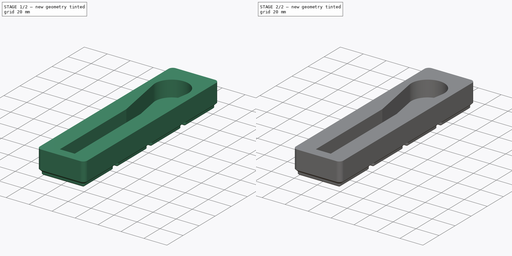
[diagram: build sequence overview — one tinted view per stage of 2, left to right]
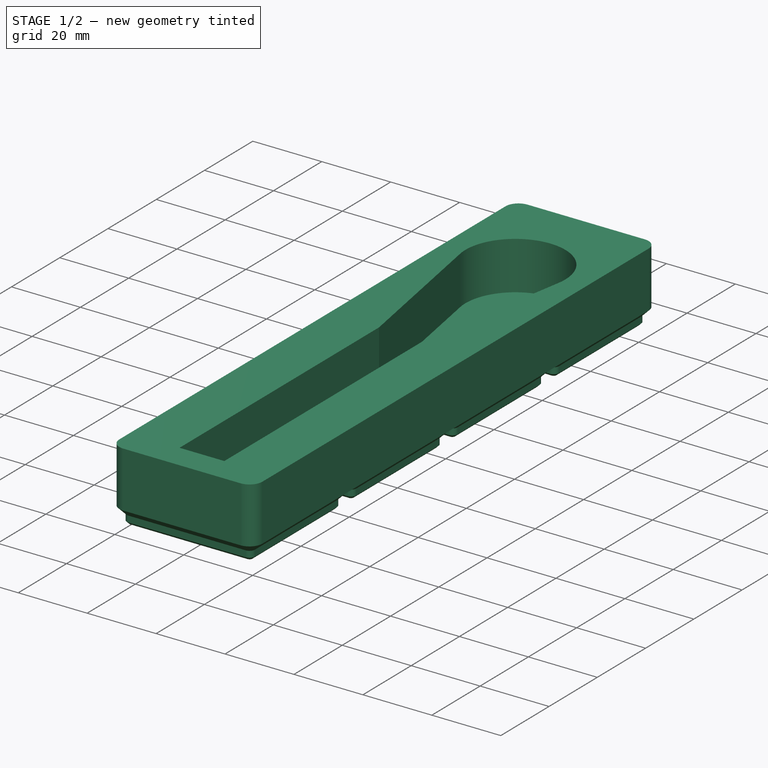
[diagram: stage 1 of 2 — iso view after this stage's code; geometry added in this stage tinted green]
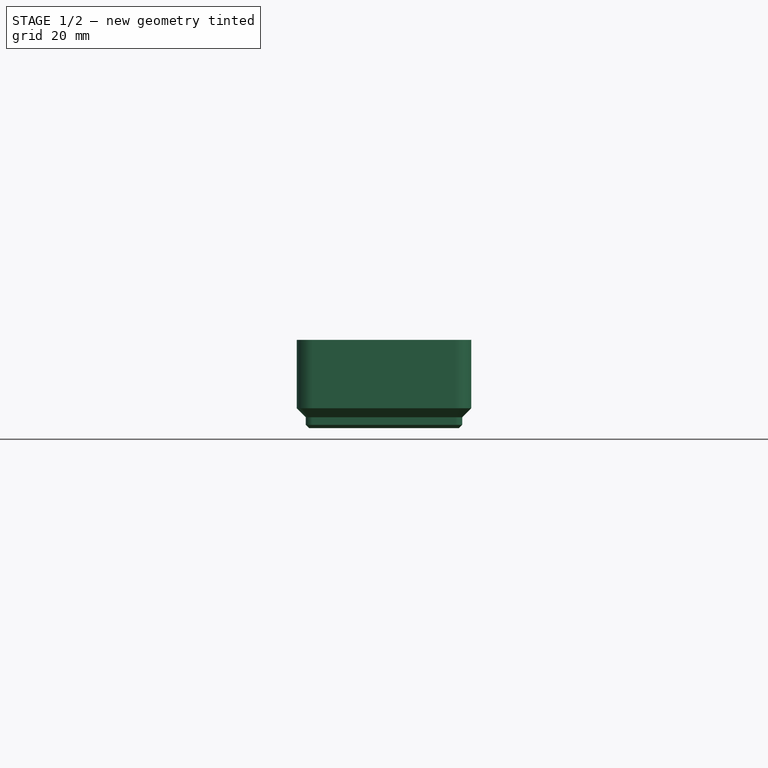
[diagram: stage 1 of 2 — front view after this stage's code; geometry added in this stage tinted green]
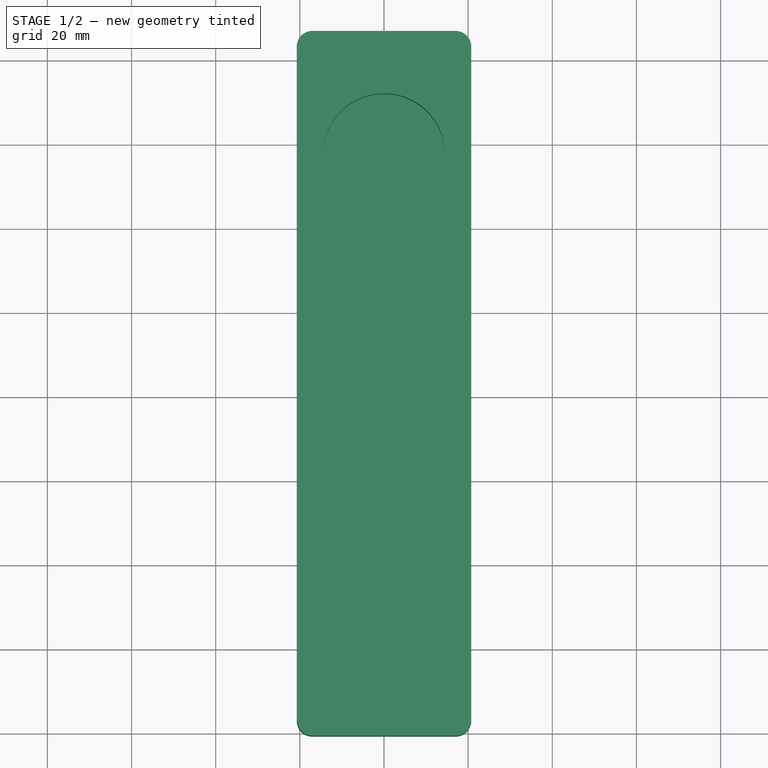
[diagram: stage 1 of 2 — top view after this stage's code; geometry added in this stage tinted green]
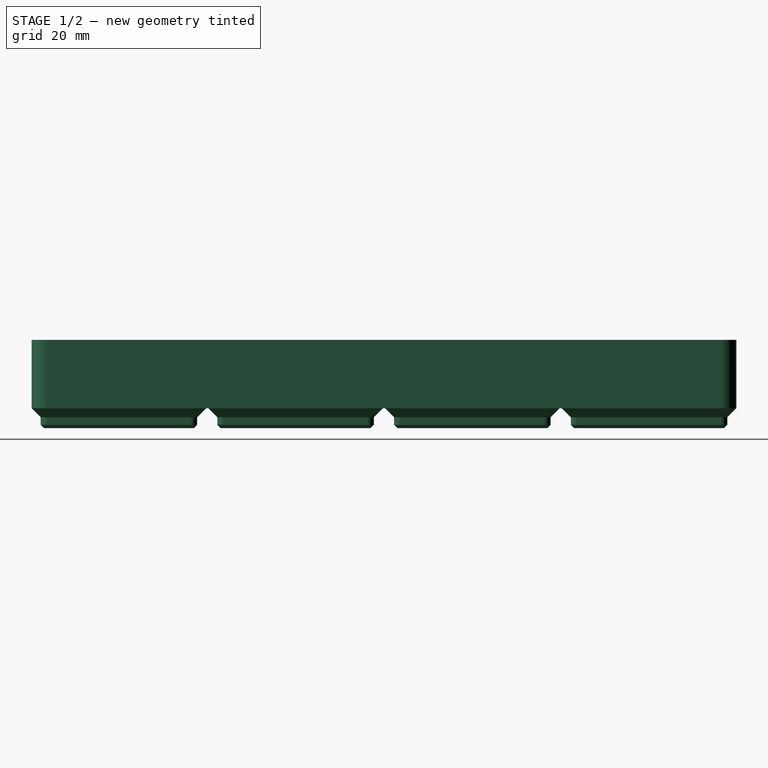
[diagram: stage 1 of 2 — right view after this stage's code; geometry added in this stage tinted green]
FCSTD DOCUMENT  (FreeCAD 0.21R33771 (Git))
Label: quarter_inch_drive
License: All rights reserved
LicenseURL: http://en.wikipedia.org/wiki/All_rights_reserved
objects: Sketcher::SketchObject×2, PartDesign::Pocket×2, PartDesign::FeaturePython×1, PartDesign::Body×1
note: 8 computed .brp shape members not serialized (recipe doc carries the construction recipe); baked Part::Feature solids carry a one-line shape summary decoded from their .brp

FEATURE [PartDesign::FeaturePython] BinBlank  # WARN: FeaturePython — macro-defined, semantics opaque (R4)
  BaseProfileBottomChamfer = 0.8
  BaseProfileHeight = 4.75
  BaseProfileTopChamfer = 2.15
  BaseProfileVerticalSection = 1.8
  BinBottomRadius = 0.8
  BinOuterRadius = 3.75
  BinUnit = 41.5
  BinVerticalRadius = 1.6
  CustomHeight = 42
  GridSize = 42
  HeightUnitValue = 7
  HeightUnits = 3
  MagnetHoleDepth = 2.4
  MagnetHoleDiameter = 6.5
  MagnetHoleDistanceFromEdge = 8
  MagnetHoles = false
  NonStandardHeight = false
  ScrewHoleDepth = 6
  ScrewHoleDiameter = 3
  ScrewHoles = false
  SequentialBridgingLayerHeight = 0.2
  StackingLip = false
  StackingLipBottomChamfer = 0.7
  StackingLipTopChamfer = 1.5
  StackingLipTopLedge = 0.4
  StackingLipVerticalSection = 1.8
  Tolerance = 0.25
  TotalHeight = 21
  WallThickness = 1
  version = 0.5.0
  xGridUnits = 1
  xTotalWidth = 41.5
  yGridUnits = 4
  yTotalWidth = 167.5
FEATURE [Sketcher::SketchObject] Sketch
  FullyConstrained = false
  MapMode = 5
  Support = -> [BinBlank]
  sketch-geometry (7):
    g0: LineSegment StartX=0 StartY=-13.0621 StartZ=0 EndX=0 EndY=131.938 EndZ=0
    g1: LineSegment StartX=6.68024 StartY=-12.6916 StartZ=0 EndX=-6.31976 EndY=-12.6916 EndZ=0
    g2: LineSegment StartX=-6.31976 StartY=-12.6916 StartZ=0 EndX=-6.31976 EndY=69.9582 EndZ=0
    g3: LineSegment StartX=6.68024 StartY=69.9359 StartZ=0 EndX=6.68024 EndY=-12.6916 EndZ=0
    g4: ArcOfCircle CenterX=2.7e-15 CenterY=117.438 CenterZ=0 NormalX=0 NormalY=0 NormalZ=1 AngleXU=0 Radius=14.5 StartAngle=6.09826 EndAngle=9.6097
    g5: LineSegment StartX=-14.2528 StartY=114.772 StartZ=0 EndX=-6.31976 EndY=69.9582 EndZ=0
    g6: LineSegment StartX=14.2528 StartY=114.772 StartZ=0 EndX=6.68024 EndY=69.9359 EndZ=0
  constraints (13):
    c: PointOnObject(g0,g-2)
    c: Coincident(g1,g2)
    c: Coincident(g3,g1)
    c: Horizontal(g1)
    c: Vertical(g2)
    c: Vertical(g3)
    c: Diameter(g4) = 29
    c: Vertical(g0)
    c: PointOnObject(g0,g4)
    c: Coincident(g5,g4)
    c: Coincident(g5,g2)
    c: Coincident(g6,g4)
    c: Coincident(g6,g3)
FEATURE [PartDesign::Pocket] Pocket
  BaseFeature = -> BinBlank
  Direction = (0,0,-1)
  Length = 14
  Length2 = 5
  Profile = -> Sketch
  ReferenceAxis = -> Sketch [N_Axis]
  Type = 0
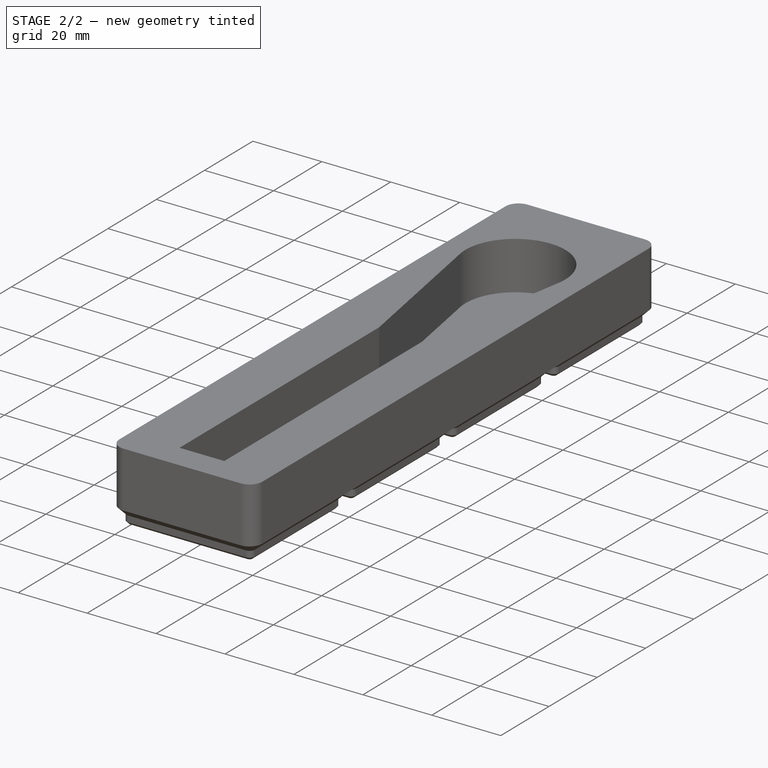
[diagram: stage 2 of 2 — iso view after this stage's code; geometry added in this stage tinted green]
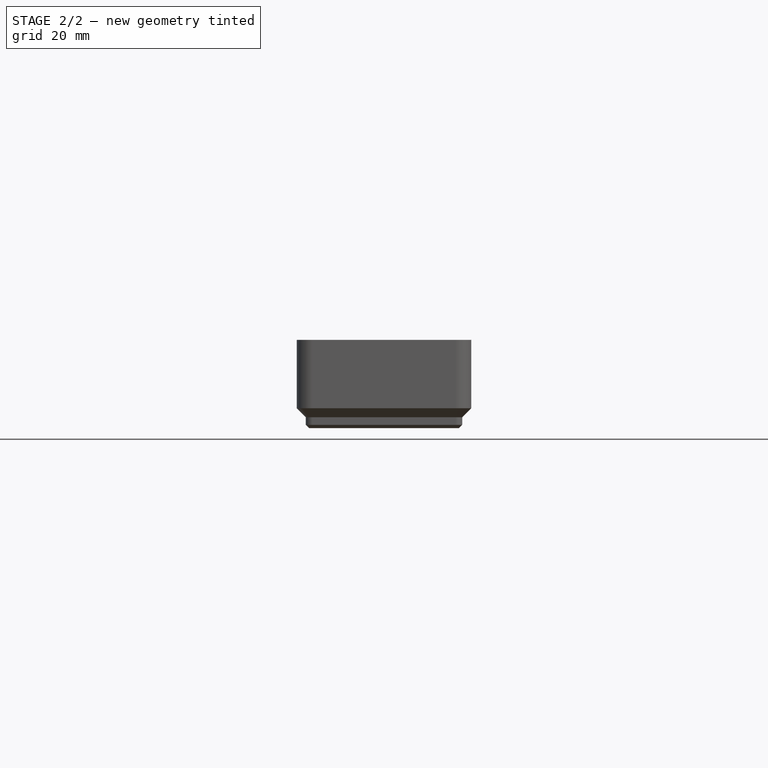
[diagram: stage 2 of 2 — front view after this stage's code; geometry added in this stage tinted green]
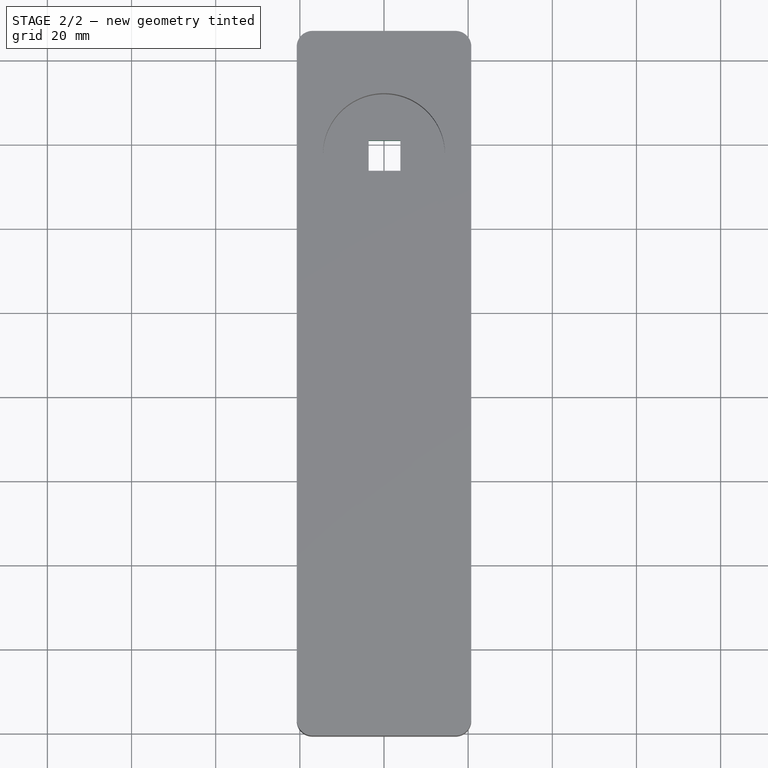
[diagram: stage 2 of 2 — top view after this stage's code; geometry added in this stage tinted green]
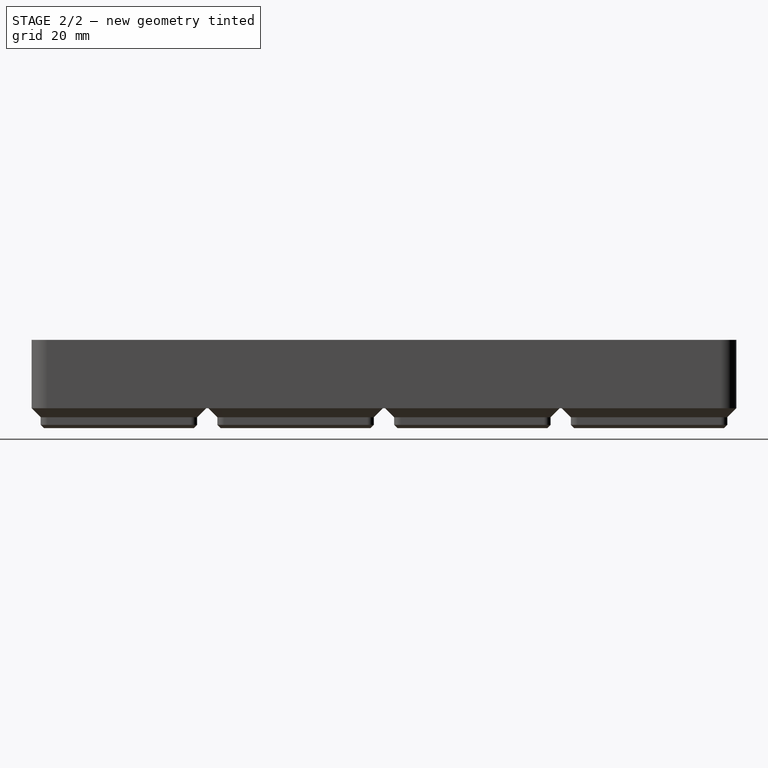
[diagram: stage 2 of 2 — right view after this stage's code; geometry added in this stage tinted green]
FEATURE [Sketcher::SketchObject] Sketch001
  FullyConstrained = false
  MapMode = 5
  Placement = pos=(0,0,-14) rot=(0,0,1;0rad)
  Support = -> [Pocket]
  sketch-geometry (4):
    g0: LineSegment StartX=-3.65362 StartY=120.947 StartZ=0 EndX=3.90132 EndY=120.947 EndZ=0
    g1: LineSegment StartX=3.90132 StartY=120.947 StartZ=0 EndX=3.90132 EndY=113.743 EndZ=0
    g2: LineSegment StartX=3.90132 StartY=113.743 StartZ=0 EndX=-3.65362 EndY=113.743 EndZ=0
    g3: LineSegment StartX=-3.65362 StartY=113.743 StartZ=0 EndX=-3.65362 EndY=120.947 EndZ=0
  constraints (8):
    c: Coincident(g0,g1)
    c: Coincident(g1,g2)
    c: Coincident(g2,g3)
    c: Coincident(g3,g0)
    c: Horizontal(g0)
    c: Horizontal(g2)
    c: Vertical(g1)
    c: Vertical(g3)
FEATURE [PartDesign::Pocket] Pocket001
  BaseFeature = -> Pocket
  Direction = (0,0,-1)
  Length = 5
  Length2 = 5
  Profile = -> Sketch001
  ReferenceAxis = -> Sketch001 [N_Axis]
  Type = 1
FEATURE [PartDesign::Body] Body
  Group = -> [BinBlank,Sketch,Pocket,Sketch001,Pocket001]
  Origin = -> Origin
  Tip = -> Pocket001
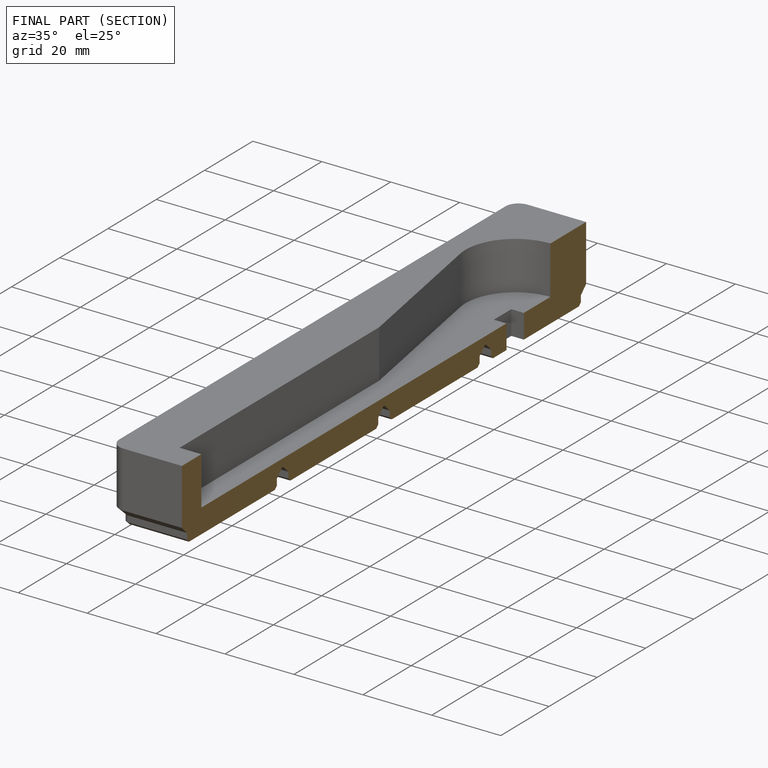
[diagram: finished part — half-section view (interior)]
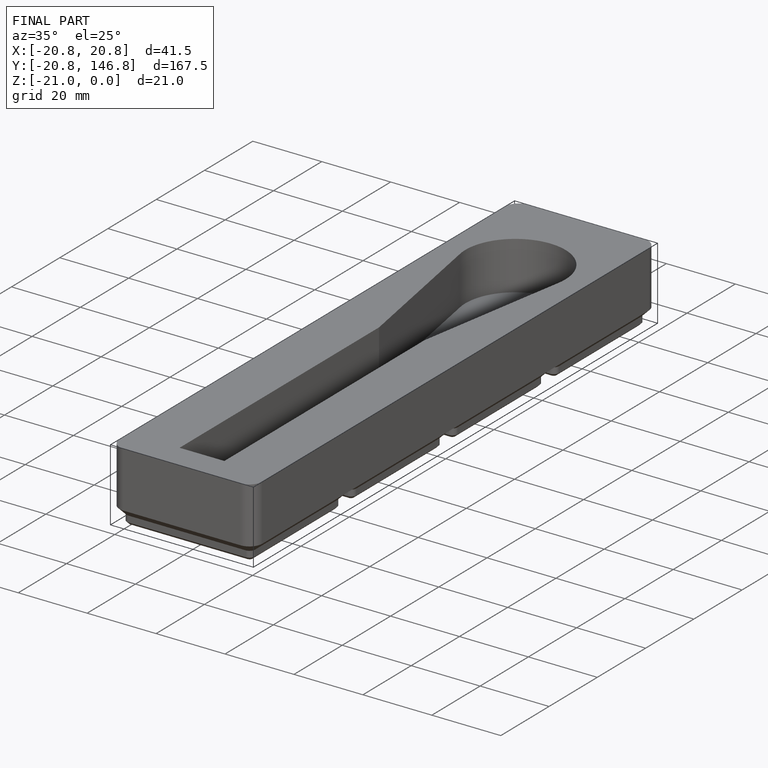
[diagram: finished part — iso view with bounding-box wireframe]
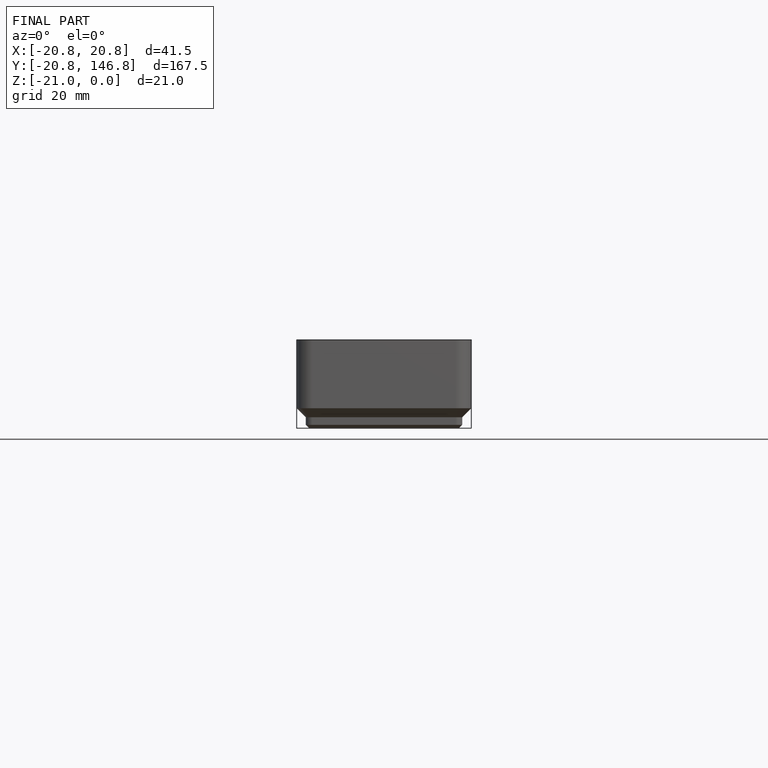
[diagram: finished part — front view with bounding-box wireframe]
